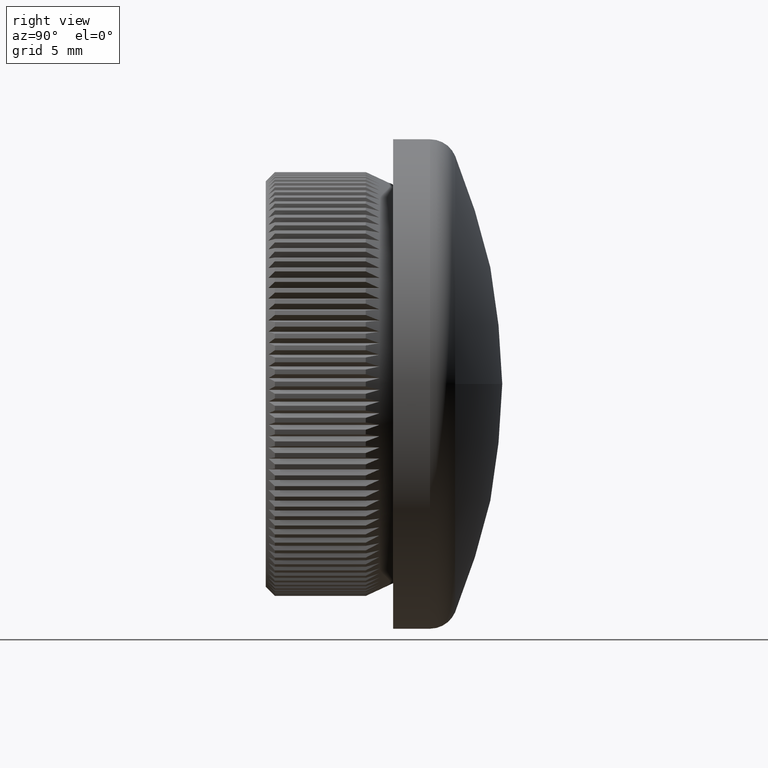
[diagram: clean part render]
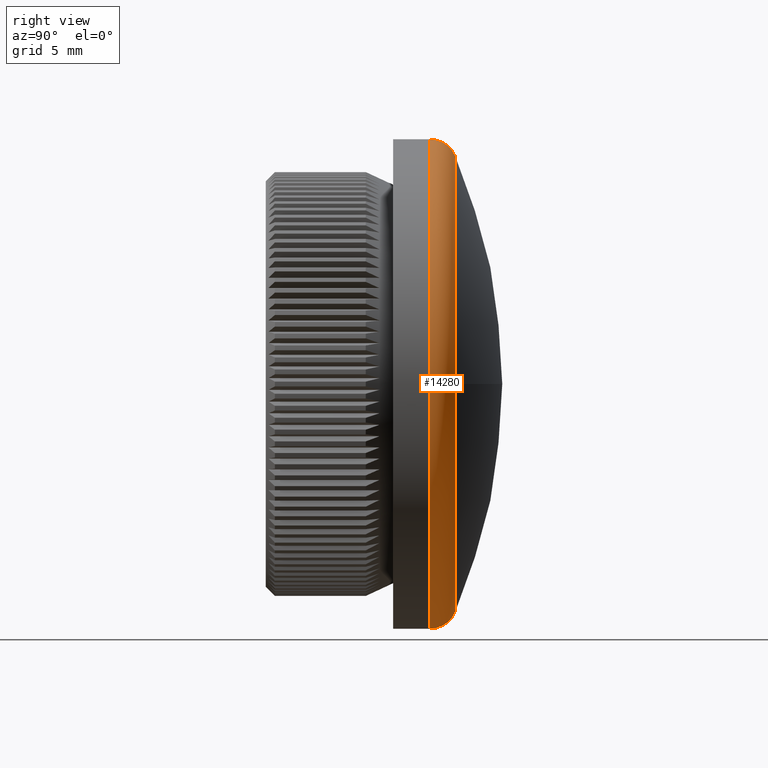
[diagram: same view with one face highlighted and labeled with its STEP entity id]
A machine part, right view. The second image highlights one B-rep face of the part: STEP entity #14280.
In plain terms, the highlighted toroidal blend (fillet) surface has major radius 11.95 mm and minor (blend) radius 1.5 mm.
Its self-contained STEP definition (entity closure, byte-faithful):
#860 = AXIS2_PLACEMENT_3D ( 'NONE', #7696, #9724, #20986 ) ;
#998 = DIRECTION ( 'NONE',  ( 0.0000000000000000000, 0.0000000000000000000, -1.000000000000000000 ) ) ;
#1071 = CARTESIAN_POINT ( 'NONE',  ( 0.0000000000000000000, 10.40786811655475900, 0.0000000000000000000 ) ) ;
#1972 = VERTEX_POINT ( 'NONE', #23249 ) ;
#2536 = CARTESIAN_POINT ( 'NONE',  ( 1.463452924981087300E-015, 9.030716351575401600, 11.95000000000000100 ) ) ;
#2994 = CARTESIAN_POINT ( 'NONE',  ( 0.0000000000000000000, 9.030716351575401600, 0.0000000000000000000 ) ) ;
#3386 = EDGE_CURVE ( 'NONE', #1972, #22790, #3778, .T. ) ;
#3778 = CIRCLE ( 'NONE', #20259, 1.499999999999999600 ) ;
#3894 = EDGE_CURVE ( 'NONE', #18122, #22394, #21436, .T. ) ;
#5137 = AXIS2_PLACEMENT_3D ( 'NONE', #19950, #23563, #998 ) ;
#7556 = EDGE_CURVE ( 'NONE', #1972, #18122, #18158, .T. ) ;
#7696 = CARTESIAN_POINT ( 'NONE',  ( 0.0000000000000000000, 10.40786811655475900, 0.0000000000000000000 ) ) ;
#8516 = ORIENTED_EDGE ( 'NONE', *, *, #3386, .T. ) ;
#8626 = DIRECTION ( 'NONE',  ( -0.0000000000000000000, -1.000000000000000000, -0.0000000000000000000 ) ) ;
#8636 = CARTESIAN_POINT ( 'NONE',  ( 0.0000000000000000000, 10.40786811655475900, -12.54451914705435000 ) ) ;
#8729 = AXIS2_PLACEMENT_3D ( 'NONE', #14977, #24350, #10948 ) ;
#9724 = DIRECTION ( 'NONE',  ( 0.0000000000000000000, 1.000000000000000000, 0.0000000000000000000 ) ) ;
#10922 = AXIS2_PLACEMENT_3D ( 'NONE', #2994, #8626, #23654 ) ;
#10948 = DIRECTION ( 'NONE',  ( 0.0000000000000000000, 0.0000000000000000000, 1.000000000000000000 ) ) ;
#10961 = EDGE_LOOP ( 'NONE', ( #13526, #8516, #11701, #18838, #11308 ) ) ;
#11308 = ORIENTED_EDGE ( 'NONE', *, *, #3894, .F. ) ;
#11701 = ORIENTED_EDGE ( 'NONE', *, *, #21432, .F. ) ;
#11970 = CARTESIAN_POINT ( 'NONE',  ( 1.647149944853190000E-015, 9.030716351575401600, 13.44999999999999900 ) ) ;
#13272 = CARTESIAN_POINT ( 'NONE',  ( 12.54451914705435600, 10.40786811655475900, 0.0000000000000000000 ) ) ;
#13526 = ORIENTED_EDGE ( 'NONE', *, *, #7556, .F. ) ;
#14280 = ADVANCED_FACE ( 'NONE', ( #20645 ), #15652, .T. ) ;
#14977 = CARTESIAN_POINT ( 'NONE',  ( 0.0000000000000000000, 9.030716351575401600, -11.95000000000000100 ) ) ;
#15652 = TOROIDAL_SURFACE ( 'NONE', #10922, 11.95000000000000100, 1.500000000000000000 ) ;
#15675 = AXIS2_PLACEMENT_3D ( 'NONE', #1071, #16230, #22082 ) ;
#16133 = EDGE_CURVE ( 'NONE', #22394, #18054, #24077, .T. ) ;
#16230 = DIRECTION ( 'NONE',  ( 0.0000000000000000000, 1.000000000000000000, 0.0000000000000000000 ) ) ;
#17223 = DIRECTION ( 'NONE',  ( 1.000000000000000000, 0.0000000000000000000, -1.224646799147353200E-016 ) ) ;
#18054 = VERTEX_POINT ( 'NONE', #24142 ) ;
#18122 = VERTEX_POINT ( 'NONE', #13272 ) ;
#18158 = CIRCLE ( 'NONE', #860, 12.54451914705435000 ) ;
#18653 = CIRCLE ( 'NONE', #5137, 13.44999999999999900 ) ;
#18838 = ORIENTED_EDGE ( 'NONE', *, *, #16133, .F. ) ;
#19103 = DIRECTION ( 'NONE',  ( -1.224646799147353500E-016, 0.0000000000000000000, -1.000000000000000000 ) ) ;
#19950 = CARTESIAN_POINT ( 'NONE',  ( 0.0000000000000000000, 9.030716351575401600, 0.0000000000000000000 ) ) ;
#20259 = AXIS2_PLACEMENT_3D ( 'NONE', #2536, #17223, #19103 ) ;
#20645 = FACE_OUTER_BOUND ( 'NONE', #10961, .T. ) ;
#20986 = DIRECTION ( 'NONE',  ( 0.0000000000000000000, 0.0000000000000000000, -1.000000000000000000 ) ) ;
#21432 = EDGE_CURVE ( 'NONE', #18054, #22790, #18653, .T. ) ;
#21436 = CIRCLE ( 'NONE', #15675, 12.54451914705435000 ) ;
#22082 = DIRECTION ( 'NONE',  ( 0.0000000000000000000, 0.0000000000000000000, -1.000000000000000000 ) ) ;
#22394 = VERTEX_POINT ( 'NONE', #8636 ) ;
#22790 = VERTEX_POINT ( 'NONE', #11970 ) ;
#23249 = CARTESIAN_POINT ( 'NONE',  ( 1.591705233440734600E-015, 10.40786811655475900, 12.54451914705435000 ) ) ;
#23563 = DIRECTION ( 'NONE',  ( -0.0000000000000000000, -1.000000000000000000, -0.0000000000000000000 ) ) ;
#23654 = DIRECTION ( 'NONE',  ( 0.0000000000000000000, 0.0000000000000000000, -1.000000000000000000 ) ) ;
#24077 = CIRCLE ( 'NONE', #8729, 1.499999999999999600 ) ;
#24142 = CARTESIAN_POINT ( 'NONE',  ( 0.0000000000000000000, 9.030716351575401600, -13.44999999999999900 ) ) ;
#24350 = DIRECTION ( 'NONE',  ( -1.000000000000000000, 0.0000000000000000000, 0.0000000000000000000 ) ) ;